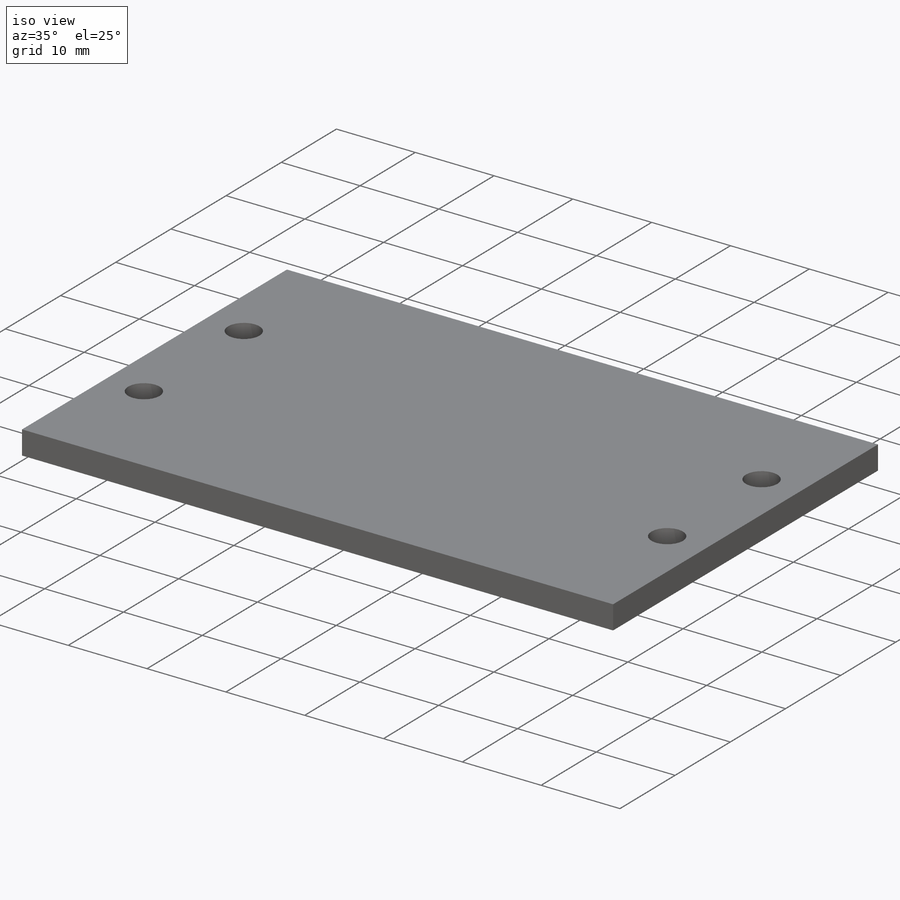
[diagram: iso view]
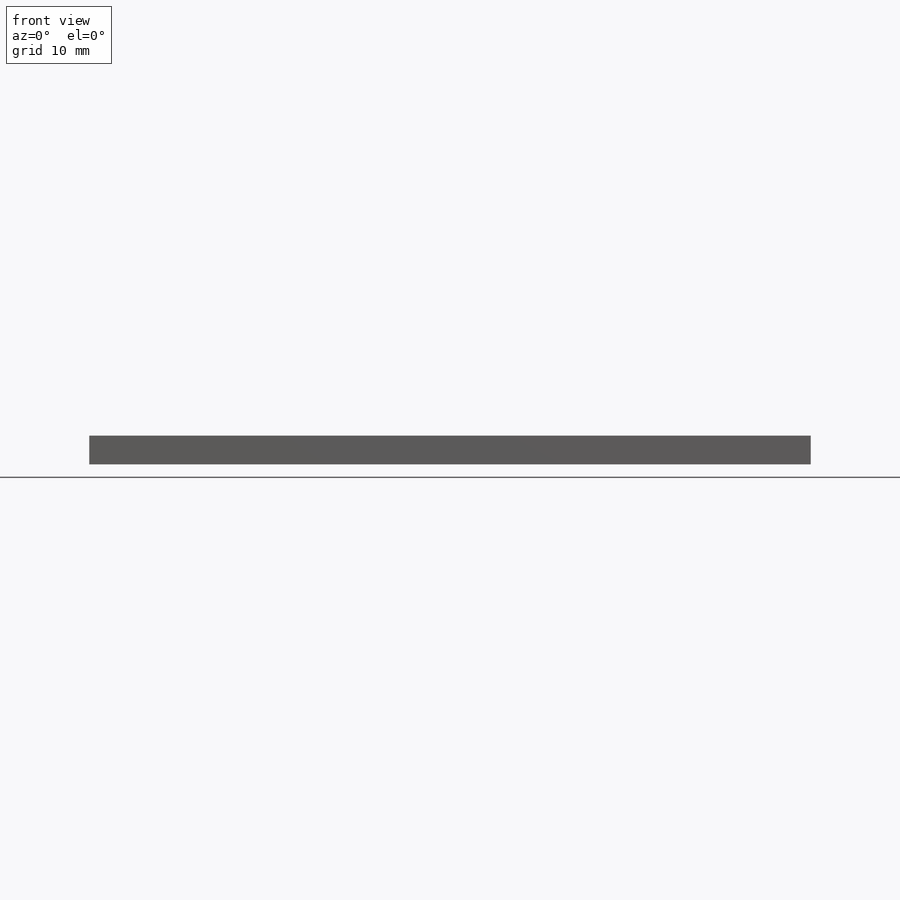
[diagram: front view]
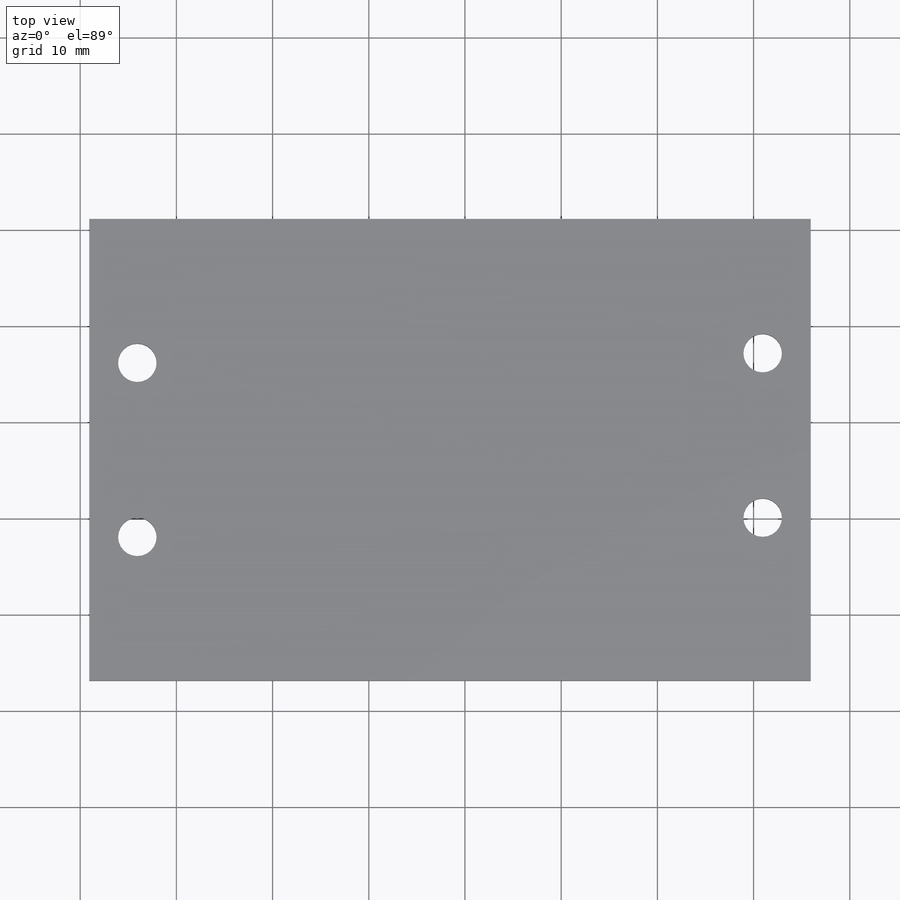
[diagram: top view]
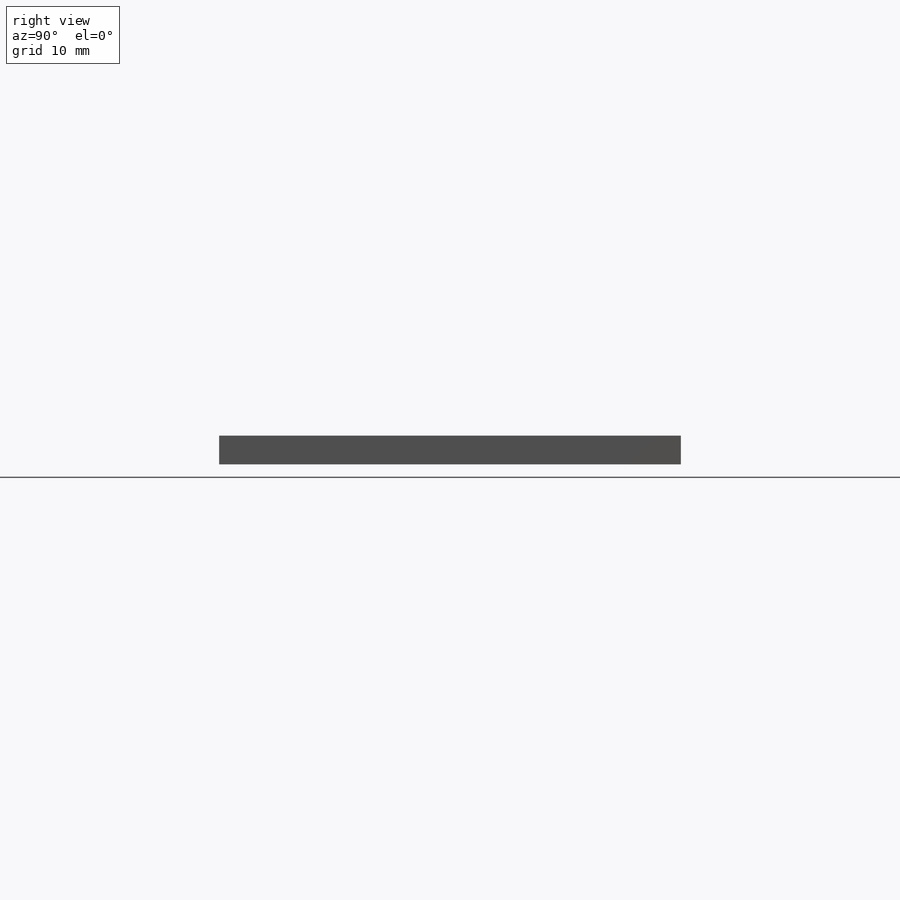
[diagram: right view]
SOLIDWORKS PART (.sldprt)
format: sldprt  version: not decoded by parser v0  size: 584,704 bytes
history: native  units: mm
features: sketch x5, extrude x3, material x1, cut_extrude x1 (+12 scaffold rows collapsed)
feature tree (22):
  scaffold x12  (default folders/planes/origin — collapsed)
  material  "Acrylic (Medium-high impact)"
  sketch  "Sketch1"  dims[D1=90.0mm D2=85.0mm]
  extrude  "Boss-Extrude1"  Depth=3mm
  sketch  "Sketch3"  dims[c1.D9=3.3mm c1.D10=3.3mm c1.D11=3.3mm c1.D12=3.3mm c2.D9=3.3mm c2.D17=4.0mm c2.D19=4.0mm c2.D1=15.4mm c2.D2=13.5mm c2.D3=5.2mm c2.D4=12.1mm c2.D5=8.1mm c2.D6=5.1mm c2.D7=14.9mm c2.D8=6.2mm c2.D13=80.0mm c2.D14=38.1mm c2.D15=10.0mm c2.D16=10.0mm c2.D18=5.0mm c2.D20=55.0mm c2.D21=32.0mm c2.D22=10.0mm]
  sketch  "Sketch5"  dims[c1.D3=~8.075592mm c1.D5=4.0mm c1.D6=4.0mm c1.D7=~1.90938mm c1.D8=4.0mm c1.D9=4.0mm c1.D10=4.0mm c2.D3=54.0mm c2.D4=3.0mm c2.D5=3.0mm c3.D3=10.0mm c3.D4=10.0mm c3.D6=12.0mm c3.D7=9.0mm c3.D8=5.0mm c3.D10=16.1mm c3.D11=65.0mm c3.D12=19.1mm c3.D1=8.0mm c3.D2=8.0mm]
  extrude  "Boss-Extrude2"  Depth=3mm
  sketch  "Sketch6"  dims[D1=20.0mm]
  cut_extrude  "Cut-Extrude1"  Depth=10mm
  sketch  "Sketch8"
  extrude  "Boss-Extrude3"  [1 undecoded]
decode coverage: 7 of 9 modeling features carry decoded parameters
note: ~ marks probable driven/reference dimensions
note: 1 parameter value undecoded
note: suppression state not decoded; provenance and decode notes live in map.json
